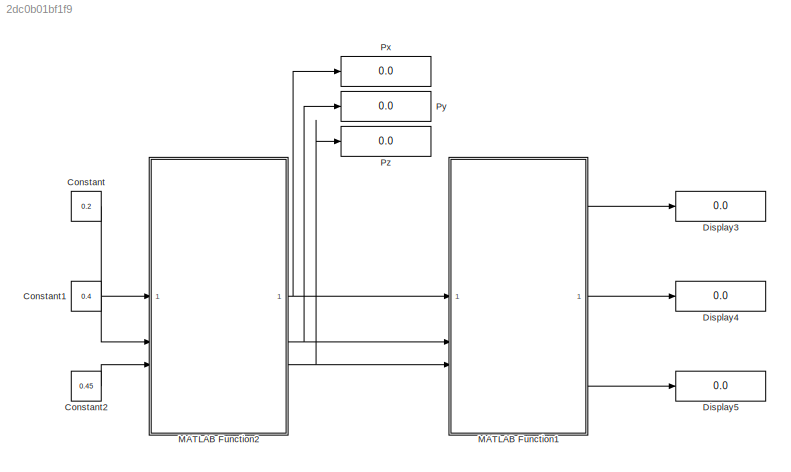
MODEL slx_2dc0b01bf1f9
KIND model
CONFIG AbsTol = auto
CONFIG EnableMultiTasking = off
CONFIG FixedStep = auto
CONFIG MaxStep = auto
CONFIG MinStep = auto
CONFIG RelTol = 1e-3
CONFIG SampleTimeConstraint = Unconstrained
CONFIG SolverName = VariableStepAuto
CONFIG StartTime = 0.0
CONFIG StopTime = 10.0
BLOCK [Constant] Constant
  Value = 0.2
BLOCK [Constant] Constant1
  Value = 0.4
BLOCK [Constant] Constant2
  Value = 0.45
BLOCK [Display] Display3
  Decimation = 1
BLOCK [Display] Display4
  Decimation = 1
BLOCK [Display] Display5
  Decimation = 1
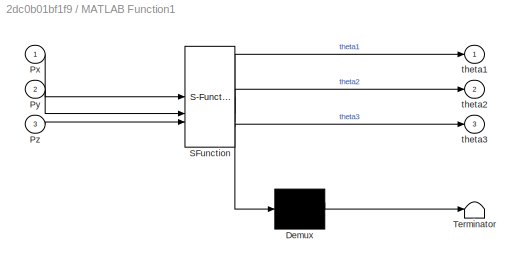
BLOCK [SubSystem] MATLAB Function1
  ErrorFcn = Stateflow.Translate.translate
  PermitHierarchicalResolution = ExplicitOnly
  SFBlockType = MATLAB Function
  TreatAsAtomicUnit = on
BLOCK [Demux] MATLAB Function1/ Demux 
  Outputs = 1
BLOCK [S-Function] MATLAB Function1/ SFunction 
  EnableBusSupport = on
  FunctionName = sf_sfun
  PortCounts = [3 4]
  SFcnIsStateOwnerBlock = off
  SFunctionDeploymentMode = off
  Tag = Stateflow S-Function 1
BLOCK [Terminator] MATLAB Function1/ Terminator 
BLOCK [Inport] MATLAB Function1/Px
BLOCK [Inport] MATLAB Function1/Py
  Port = 2
BLOCK [Inport] MATLAB Function1/Pz
  Port = 3
BLOCK [Outport] MATLAB Function1/theta1
BLOCK [Outport] MATLAB Function1/theta2
  Port = 2
BLOCK [Outport] MATLAB Function1/theta3
  Port = 3
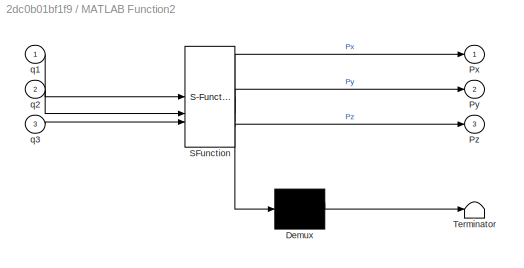
BLOCK [SubSystem] MATLAB Function2
  ErrorFcn = Stateflow.Translate.translate
  PermitHierarchicalResolution = ExplicitOnly
  SFBlockType = MATLAB Function
  TreatAsAtomicUnit = on
BLOCK [Demux] MATLAB Function2/ Demux 
  Outputs = 1
BLOCK [S-Function] MATLAB Function2/ SFunction 
  EnableBusSupport = on
  FunctionName = sf_sfun
  PortCounts = [3 4]
  SFcnIsStateOwnerBlock = off
  SFunctionDeploymentMode = off
  Tag = Stateflow S-Function 2
BLOCK [Terminator] MATLAB Function2/ Terminator 
BLOCK [Outport] MATLAB Function2/Px
BLOCK [Outport] MATLAB Function2/Py
  Port = 2
BLOCK [Outport] MATLAB Function2/Pz
  Port = 3
BLOCK [Inport] MATLAB Function2/q1
BLOCK [Inport] MATLAB Function2/q2
  Port = 2
BLOCK [Inport] MATLAB Function2/q3
  Port = 3
BLOCK [Display] Px
  Decimation = 1
  NameLocation = right
BLOCK [Display] Py
  Decimation = 1
  NameLocation = right
BLOCK [Display] Pz
  Decimation = 1
  NameLocation = right
LINE Constant1:1 -> MATLAB Function2:2
LINE Constant2:1 -> MATLAB Function2:3
LINE Constant:1 -> MATLAB Function2:1
LINE MATLAB Function1:1 -> Display3:1
LINE MATLAB Function1:2 -> Display4:1
LINE MATLAB Function1:3 -> Display5:1
NET MATLAB Function2:1 -> MATLAB Function1:1, Px:1
NET MATLAB Function2:2 -> MATLAB Function1:2, Py:1
NET MATLAB Function2:3 -> MATLAB Function1:3, Pz:1
note: NET lines group one-source signal fan-out (src -> all destinations, sorted); 1:1 wires keep LINE
CHART MATLAB Function1 states=1 transitions=1
  STATE_LABEL 'eML_blk_kernel()'
  STATE_LABEL 'SCRIPT:\nfunction [theta1, theta2, theta3] = DongHocNghich(Px,Py,Pz)\n\nl1=150;\nl2=200;\nl3=200;\n\ntheta1 = atan2(Py, Px);\ntheta2 =  -2*atan((((- Px^2 - Py^2 - Pz^2 + 2*Pz*l1 - l1^2 + l2^2 + 2*l2*l3 + l3^2)* ...\n    (Px^2 + Py^2 + Pz^2 - 2*Pz*l1 + l1^2 - l2^2 + 2*l2*l3 - l3^2))^(1/2) - 2*l2*(Px^2 + Py^2)^(1/2))/ ...\n    (Px^2 + Py^2 + Pz^2 - 2*Pz*l1 + 2*Pz*l2 + l1^2 - 2*l1*l2 + l2^2 - l3^2));\ntheta3 = ...<+229ch>'
CHART MATLAB Function2 states=1 transitions=1
  STATE_LABEL 'eML_blk_kernel()'
  STATE_LABEL 'SCRIPT:\nfunction [Px, Py, Pz] = DongHocThuan(q1,q2,q3)\nl1=150;\nl2=200;\nl3=200;\nPx = cos(q1)*(l3*cos(q2 + q3) + l2*sin(q2));\nPy = sin(q1)*(l3*cos(q2 + q3) + l2*sin(q2));\nPz =   l1 - l3*sin(q2 + q3) + l2*cos(q2);\n\n\n'
CHART  states=0 transitions=0
CHART  states=0 transitions=0
